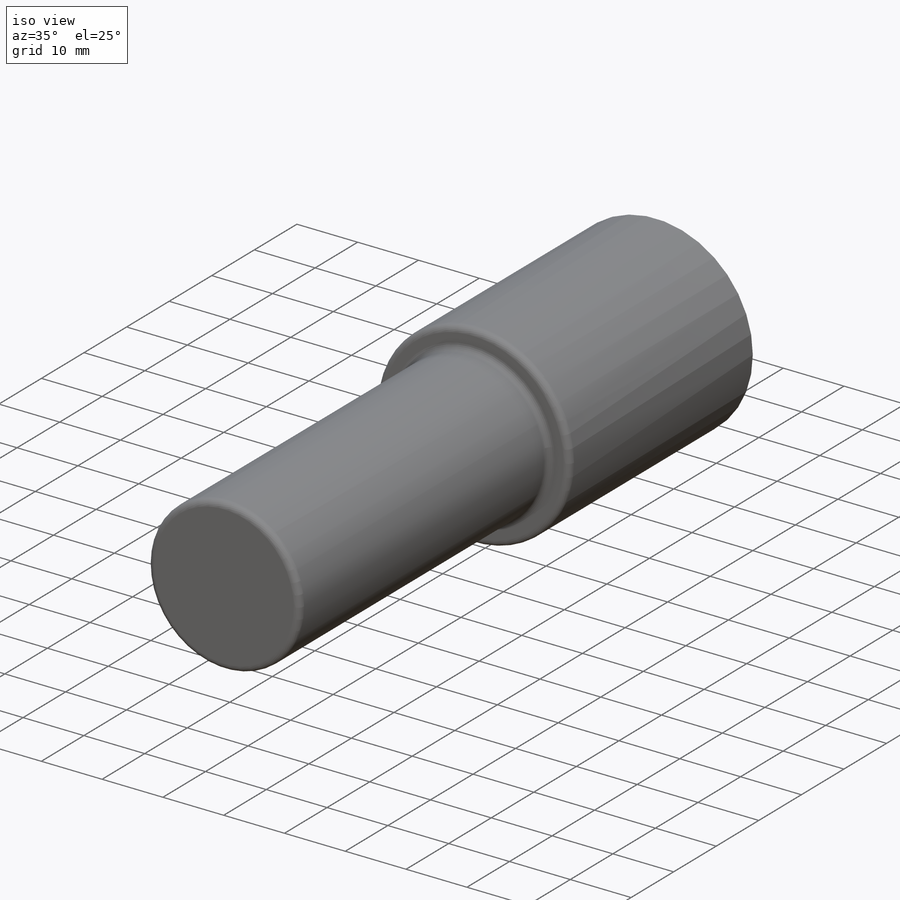
[diagram: iso view]
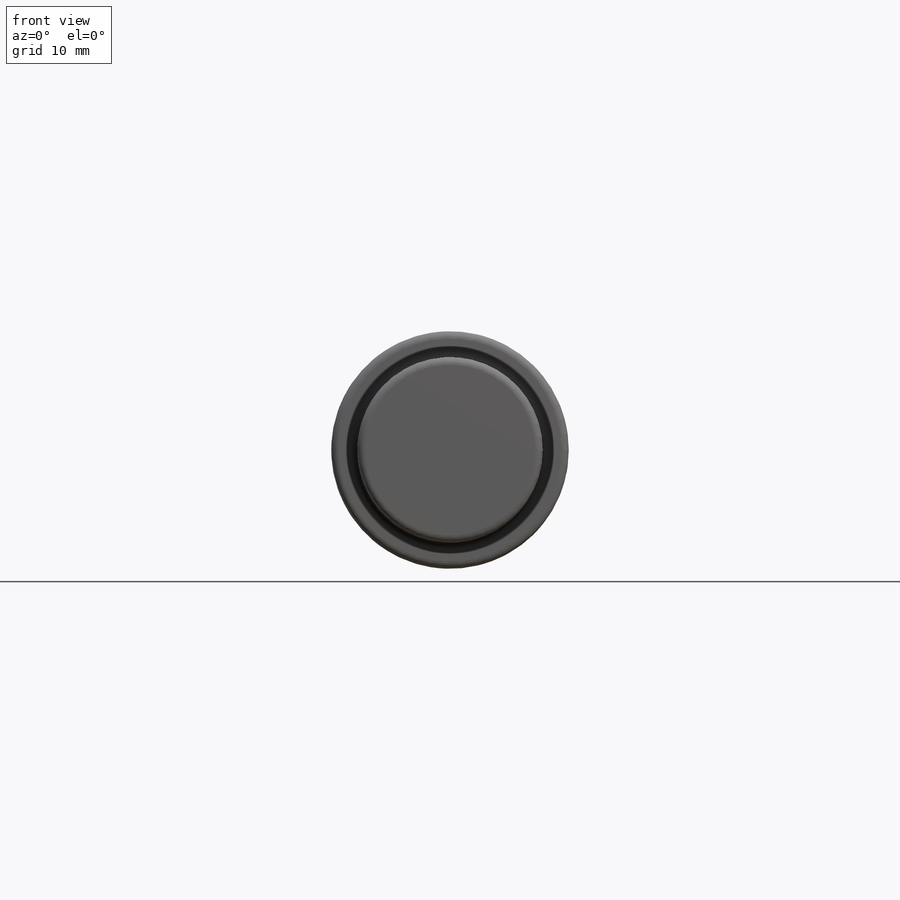
[diagram: front view]
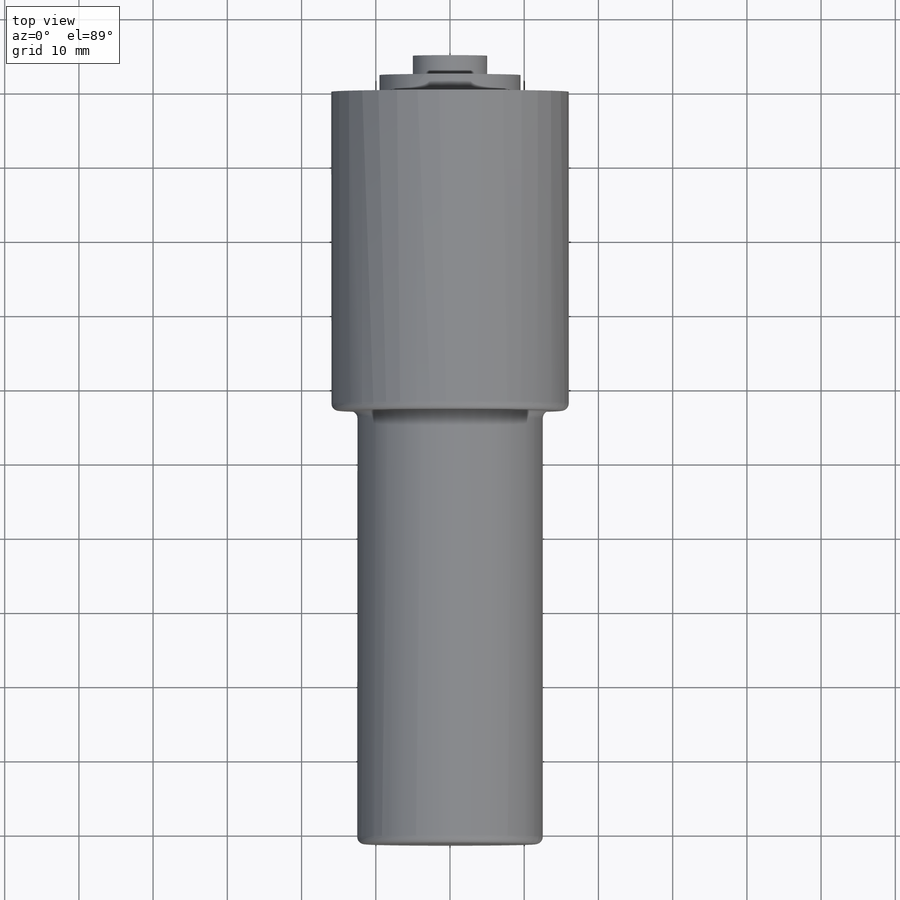
[diagram: top view]
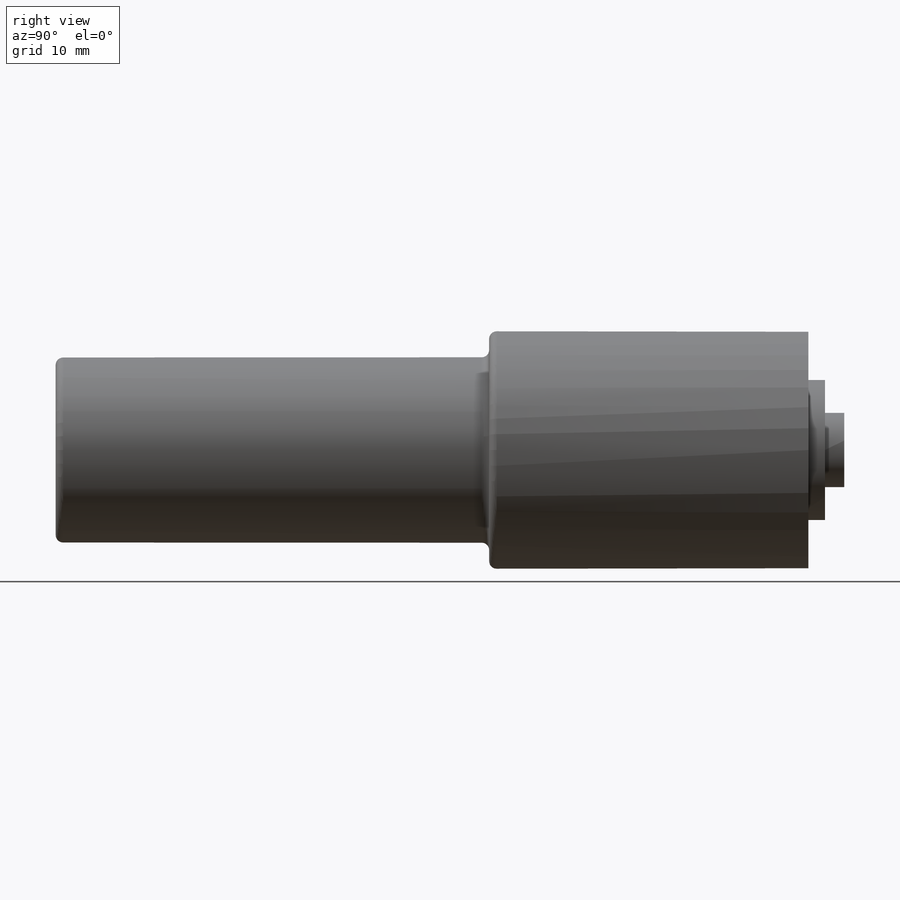
[diagram: right view]
SOLIDWORKS PART (.sldprt)
format: sldprt  version: not decoded by parser v0  size: 249,856 bytes
history: native  units: mm
features: sketch x7, extrude x4, thread x4, material x1, cut_extrude x1, fillet x1, hole x1 (+16 scaffold rows collapsed)
feature tree (35):
  scaffold x16  (default folders/planes/origin — collapsed)
  material  "PF"
  sketch  "Sketch1"  dims[D1=32.0mm]
  extrude  "Boss-Extrude1"  Depth=43mm
  sketch  "Sketch2"  dims[D1=25.0mm]
  extrude  "Boss-Extrude2"  Depth=58.4mm
  sketch  "Sketch3"  dims[D1=~8.000212mm]
  extrude  "Boss-Extrude3"  Depth=2.25mm
  sketch  "Sketch4"  dims[D1=10.0mm]
  extrude  "Boss-Extrude4"  Depth=2.6mm
  sketch  "Sketch5"  dims[D1=6.0mm]
  cut_extrude  "Cut-Extrude1"  Depth=5mm
  fillet  "Fillet1"  Radius=1mm
  hole  "M3x0.5 Tapped Hole1"  Diameter=2.5mm Depth=6.3mm
  sketch  "Sketch8"  dims[D1=26.0mm]
  sketch  "Sketch7"  dims[hole-wizard template sketch: 47 standard entries collapsed; hole parameters kept: c15.Tap Drill Depth=6.3mm c15.D3=~14.816244mm c15.Drill Angle=118.0deg]
  thread  "Hole Thread1"  Diameter=3.8mm  [1 undecoded]
  thread  "Hole Thread2"  Diameter=3.8mm  [1 undecoded]
  thread  "Hole Thread3"  Diameter=3.8mm  [1 undecoded]
  thread  "Hole Thread4"  Diameter=3.8mm  [1 undecoded]
decode coverage: 18 of 18 modeling features carry decoded parameters
note: ~ marks probable driven/reference dimensions
note: 4 parameter values undecoded
note: suppression state not decoded; provenance and decode notes live in map.json
